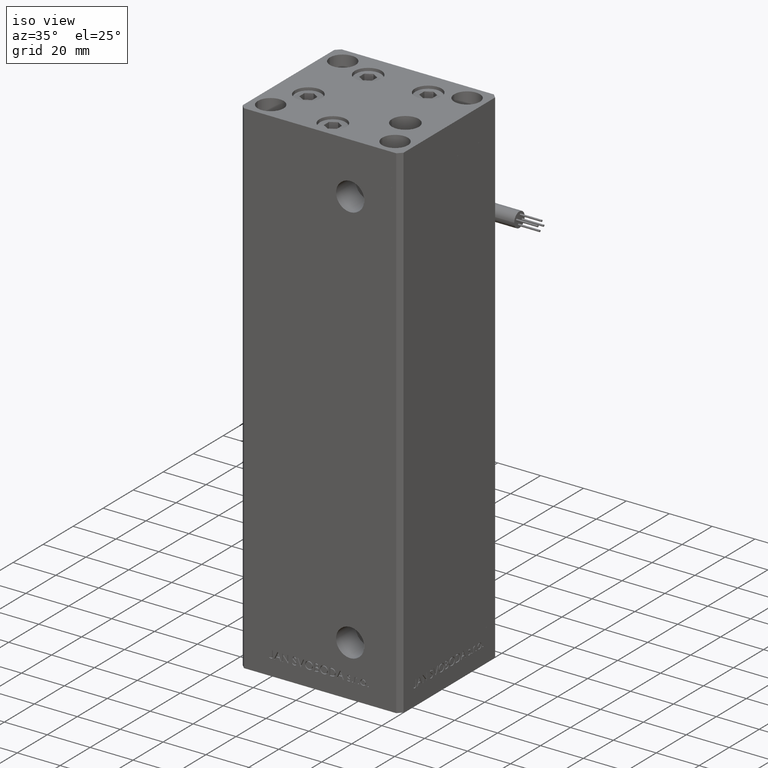
[diagram: clean part render]
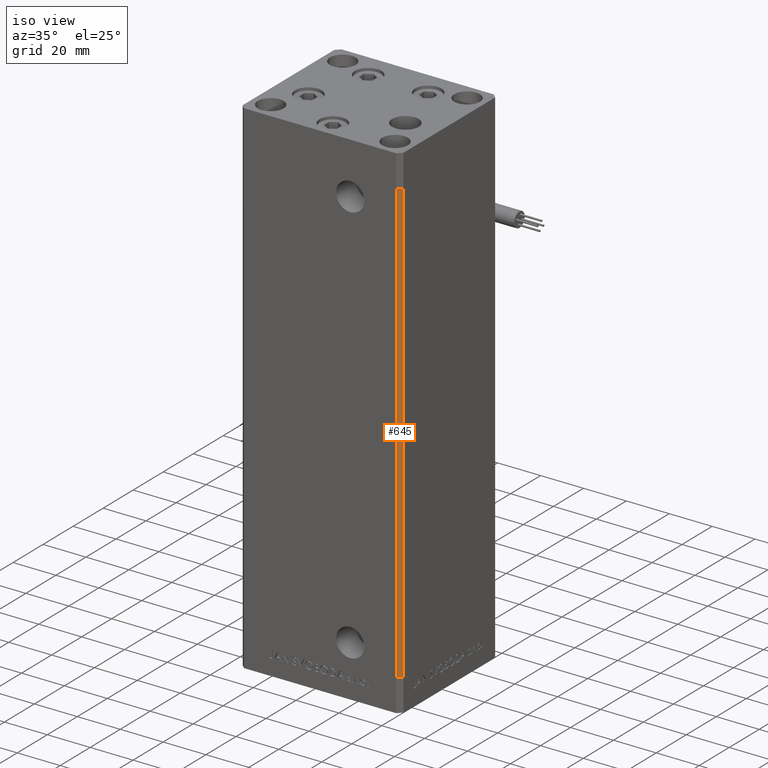
[diagram: same view with one face highlighted and labeled with its STEP entity id]
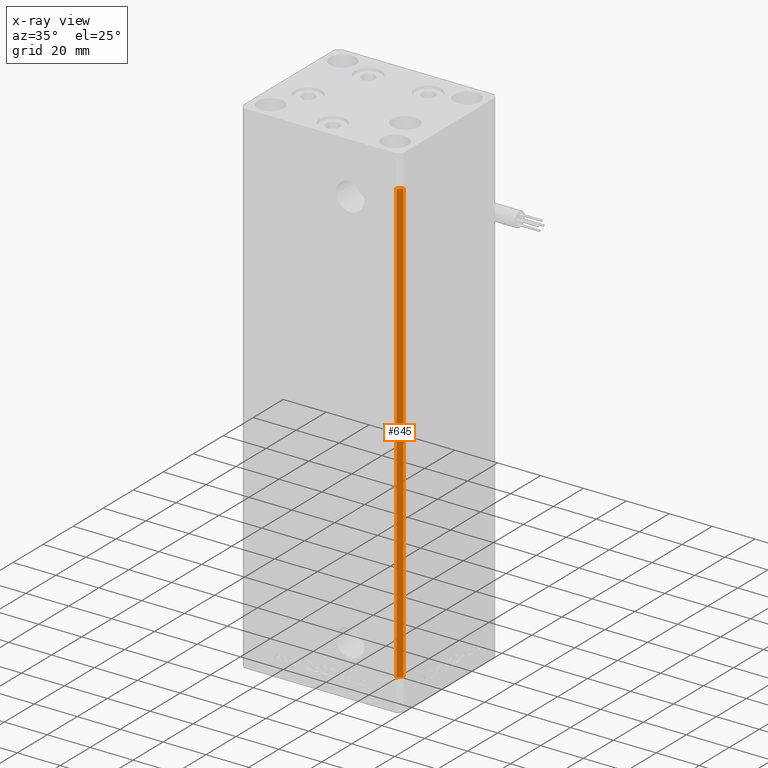
[diagram: x-ray of the same camera — body ghosted, the highlighted face saturated]
A machine part, iso view. The second image highlights one B-rep face of the part: STEP entity #645.
The next image is the same camera in x-ray: the body ghosted, the highlighted face saturated — about 0% of this face is hidden behind the body in this view.
In plain terms, the highlighted planar face has unit normal (0.7071, -0.7071, 0).
Its self-contained STEP definition (entity closure, byte-faithful):
#645 = ADVANCED_FACE ( 'NONE', ( #40212 ), #32997, .T. ) ;
#649 = DIRECTION ( 'NONE',  ( -0.7071067811865474617, -0.7071067811865474617, 0.000000000000000000 ) ) ;
#1097 = VERTEX_POINT ( 'NONE', #7756 ) ;
#3546 = DIRECTION ( 'NONE',  ( -0.000000000000000000, -0.000000000000000000, -1.000000000000000000 ) ) ;
#3696 = DIRECTION ( 'NONE',  ( 0.7071067811865475727, -0.7071067811865475727, 0.000000000000000000 ) ) ;
#5713 = DIRECTION ( 'NONE',  ( -0.7071067811865474617, -0.7071067811865474617, 0.000000000000000000 ) ) ;
#6024 = VERTEX_POINT ( 'NONE', #25453 ) ;
#6871 = AXIS2_PLACEMENT_3D ( 'NONE', #20472, #3696, #19941 ) ;
#7756 = CARTESIAN_POINT ( 'NONE',  ( 35.49999999999999289, -32.50000000000000000, 0.000000000000000000 ) ) ;
#9836 = EDGE_CURVE ( 'NONE', #10937, #6024, #25725, .T. ) ;
#10937 = VERTEX_POINT ( 'NONE', #50296 ) ;
#10991 = CARTESIAN_POINT ( 'NONE',  ( 37.49999999999999289, -30.50000000000000000, 206.0000000000000000 ) ) ;
#18855 = VERTEX_POINT ( 'NONE', #48935 ) ;
#19941 = DIRECTION ( 'NONE',  ( 0.7071067811865474617, 0.7071067811865474617, 0.000000000000000000 ) ) ;
#20472 = CARTESIAN_POINT ( 'NONE',  ( 37.49999999999999289, -30.50000000000000000, 206.0000000000000000 ) ) ;
#24094 = CARTESIAN_POINT ( 'NONE',  ( 35.49999999999999289, -32.50000000000000000, 206.0000000000000000 ) ) ;
#24816 = ORIENTED_EDGE ( 'NONE', *, *, #46268, .F. ) ;
#25389 = EDGE_CURVE ( 'NONE', #6024, #1097, #44312, .T. ) ;
#25453 = CARTESIAN_POINT ( 'NONE',  ( 35.49999999999999289, -32.50000000000000000, 206.0000000000000000 ) ) ;
#25725 = LINE ( 'NONE', #42743, #46235 ) ;
#27693 = EDGE_CURVE ( 'NONE', #18855, #1097, #41167, .T. ) ;
#28344 = LINE ( 'NONE', #10991, #32269 ) ;
#29181 = CARTESIAN_POINT ( 'NONE',  ( 37.49999999999999289, -30.50000000000000000, 0.000000000000000000 ) ) ;
#32269 = VECTOR ( 'NONE', #48305, 1000.000000000000000 ) ;
#32997 = PLANE ( 'NONE',  #6871 ) ;
#35573 = VECTOR ( 'NONE', #3546, 1000.000000000000000 ) ;
#40212 = FACE_OUTER_BOUND ( 'NONE', #45014, .T. ) ;
#41167 = LINE ( 'NONE', #29181, #49243 ) ;
#42743 = CARTESIAN_POINT ( 'NONE',  ( 37.49999999999999289, -30.50000000000000000, 206.0000000000000000 ) ) ;
#42772 = ORIENTED_EDGE ( 'NONE', *, *, #25389, .T. ) ;
#44312 = LINE ( 'NONE', #24094, #35573 ) ;
#45014 = EDGE_LOOP ( 'NONE', ( #47443, #24816, #45800, #42772 ) ) ;
#45800 = ORIENTED_EDGE ( 'NONE', *, *, #9836, .T. ) ;
#46235 = VECTOR ( 'NONE', #5713, 1000.000000000000114 ) ;
#46268 = EDGE_CURVE ( 'NONE', #10937, #18855, #28344, .T. ) ;
#47443 = ORIENTED_EDGE ( 'NONE', *, *, #27693, .F. ) ;
#48305 = DIRECTION ( 'NONE',  ( -0.000000000000000000, -0.000000000000000000, -1.000000000000000000 ) ) ;
#48935 = CARTESIAN_POINT ( 'NONE',  ( 37.49999999999999289, -30.50000000000000000, 0.000000000000000000 ) ) ;
#49243 = VECTOR ( 'NONE', #649, 1000.000000000000114 ) ;
#50296 = CARTESIAN_POINT ( 'NONE',  ( 37.49999999999999289, -30.50000000000000000, 206.0000000000000000 ) ) ;